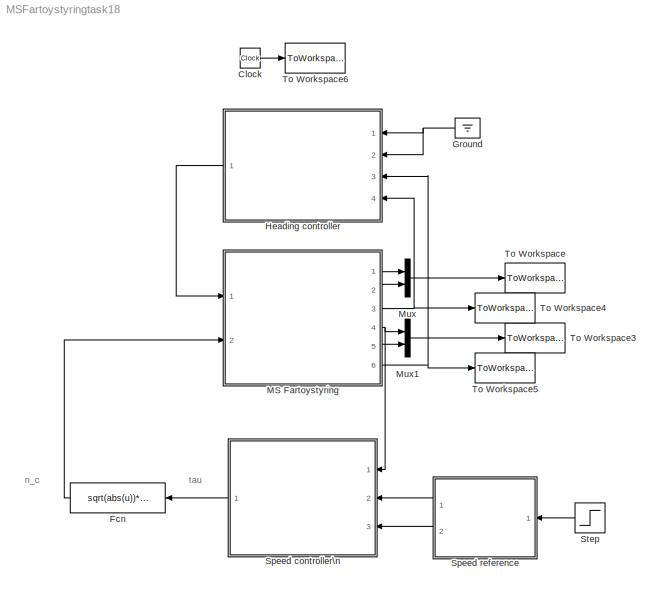
MODEL MSFartoystyringtask18
KIND model
BLOCK [Clock] Clock
  SID = 30
BLOCK [Fcn] Fcn
  Expr = sqrt(abs(u))*sgn(u)
  SID = 95
BLOCK [Ground] Ground
  SID = 98
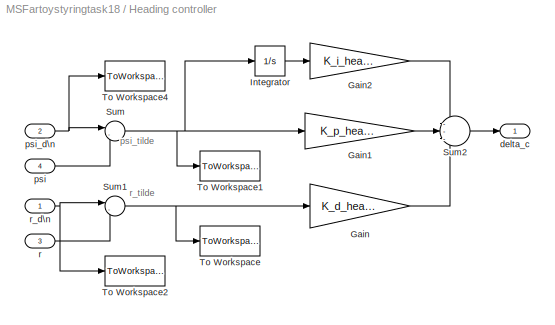
BLOCK [SubSystem] Heading controller
  Ports = [4, 1]
  RequestExecContextInheritance = off
  SID = 145
BLOCK [Gain] Heading controller/Gain
  Gain = K_d_heading
  OutDataTypeStr = Inherit: Inherit via internal rule
  ParamDataTypeStr = Inherit: Inherit via internal rule
  SID = 150
  SaturateOnIntegerOverflow = off
BLOCK [Gain] Heading controller/Gain1
  Gain = K_p_heading
  OutDataTypeStr = Inherit: Inherit via internal rule
  ParamDataTypeStr = Inherit: Inherit via internal rule
  SID = 151
  SaturateOnIntegerOverflow = off
BLOCK [Gain] Heading controller/Gain2
  Gain = K_i_heading
  OutDataTypeStr = Inherit: Inherit via internal rule
  ParamDataTypeStr = Inherit: Inherit via internal rule
  SID = 152
  SaturateOnIntegerOverflow = off
BLOCK [Integrator] Heading controller/Integrator
  Ports = [1, 1]
  SID = 153
BLOCK [Sum] Heading controller/Sum
  IconShape = round
  InputSameDT = off
  Inputs = |-+
  OutDataTypeStr = Inherit: Inherit via internal rule
  Ports = [2, 1]
  SID = 154
  SaturateOnIntegerOverflow = off
BLOCK [Sum] Heading controller/Sum1
  IconShape = round
  InputSameDT = off
  Inputs = |-+
  OutDataTypeStr = Inherit: Inherit via internal rule
  Ports = [2, 1]
  SID = 155
  SaturateOnIntegerOverflow = off
BLOCK [Sum] Heading controller/Sum2
  IconShape = round
  InputSameDT = off
  Inputs = ---
  OutDataTypeStr = Inherit: Inherit via internal rule
  Ports = [3, 1]
  SID = 156
  SaturateOnIntegerOverflow = off
BLOCK [ToWorkspace] Heading controller/To Workspace
  FixptAsFi = on
  MaxDataPoints = inf
  Ports = [1]
  SID = 157
  SampleTime = tsamp
  VariableName = r_tilde
BLOCK [ToWorkspace] Heading controller/To Workspace1
  FixptAsFi = on
  MaxDataPoints = inf
  Ports = [1]
  SID = 158
  SampleTime = tsamp
  VariableName = psi_tilde
BLOCK [ToWorkspace] Heading controller/To Workspace2
  FixptAsFi = on
  MaxDataPoints = inf
  Ports = [1]
  SID = 159
  SampleTime = tsamp
  VariableName = r_d
BLOCK [ToWorkspace] Heading controller/To Workspace4
  FixptAsFi = on
  MaxDataPoints = inf
  Ports = [1]
  SID = 160
  SampleTime = tsamp
  VariableName = psi_d
BLOCK [Outport] Heading controller/delta_c
  IconDisplay = Port number
  SID = 161
BLOCK [Inport] Heading controller/psi
  IconDisplay = Port number
  Port = 4
  SID = 149
BLOCK [Inport] Heading controller/psi_d\n
  IconDisplay = Port number
  Port = 2
  SID = 147
BLOCK [Inport] Heading controller/r
  IconDisplay = Port number
  Port = 3
  SID = 148
BLOCK [Inport] Heading controller/r_d\n
  IconDisplay = Port number
  SID = 146
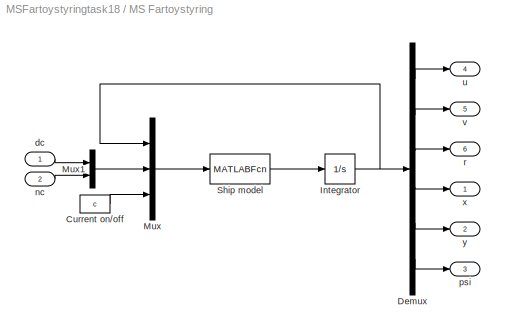
BLOCK [SubSystem] MS Fartoystyring
  Ports = [2, 6]
  RequestExecContextInheritance = off
  SID = 50
BLOCK [Constant] MS Fartoystyring/Current on//off
  SID = 53
  Value = c
BLOCK [Demux] MS Fartoystyring/Demux
  DisplayOption = bar
  Outputs = 6
  Ports = [1, 6]
  SID = 54
BLOCK [Integrator] MS Fartoystyring/Integrator
  InitialCondition = [u0 v0 r0 x0 y0 psi0]'
  Ports = [1, 1]
  SID = 55
BLOCK [Mux] MS Fartoystyring/Mux
  DisplayOption = bar
  Inputs = 3
  Ports = [3, 1]
  SID = 56
BLOCK [Mux] MS Fartoystyring/Mux1
  DisplayOption = bar
  Inputs = 2
  Ports = [2, 1]
  SID = 57
BLOCK [MATLABFcn] MS Fartoystyring/Ship model
  MATLABFcn = msfartoystyring(u(1:6), u(7:8), u(9))
  OutputDimensions = 6
  Ports = [1, 1]
  SID = 58
BLOCK [Inport] MS Fartoystyring/dc
  IconDisplay = Port number
  SID = 51
BLOCK [Inport] MS Fartoystyring/nc
  IconDisplay = Port number
  Port = 2
  SID = 52
BLOCK [Outport] MS Fartoystyring/psi
  IconDisplay = Port number
  Port = 3
  SID = 61
BLOCK [Outport] MS Fartoystyring/r
  IconDisplay = Port number
  Port = 6
  SID = 64
BLOCK [Outport] MS Fartoystyring/u
  IconDisplay = Port number
  Port = 4
  SID = 62
BLOCK [Outport] MS Fartoystyring/v
  IconDisplay = Port number
  Port = 5
  SID = 63
BLOCK [Outport] MS Fartoystyring/x
  IconDisplay = Port number
  SID = 59
BLOCK [Outport] MS Fartoystyring/y
  IconDisplay = Port number
  Port = 2
  SID = 60
BLOCK [Mux] Mux
  DisplayOption = bar
  Inputs = 2
  Ports = [2, 1]
  SID = 65
BLOCK [Mux] Mux1
  DisplayOption = bar
  Inputs = 2
  Ports = [2, 1]
  SID = 66
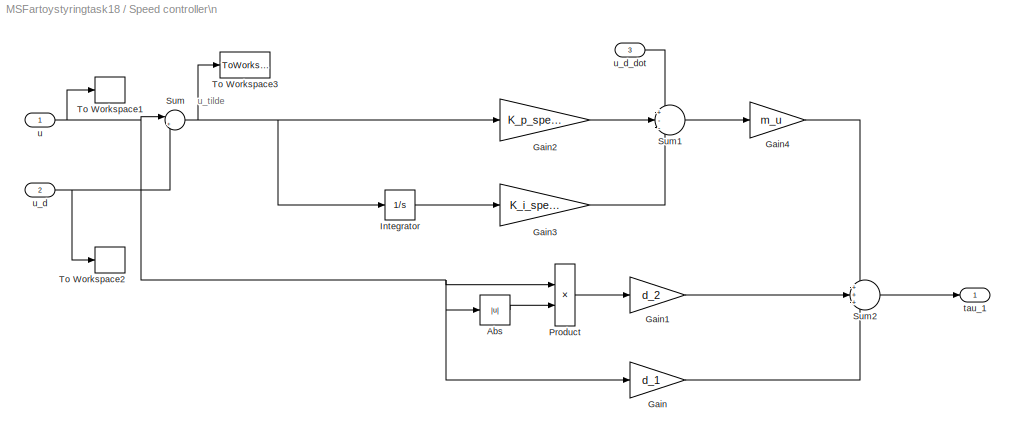
BLOCK [SubSystem] Speed controller\n
  Ports = [3, 1]
  RequestExecContextInheritance = off
  SID = 75
BLOCK [Abs] Speed controller\n/Abs
  SID = 84
  SaturateOnIntegerOverflow = off
BLOCK [Gain] Speed controller\n/Gain
  Gain = d_1
  OutDataTypeStr = Inherit: Inherit via internal rule
  ParamDataTypeStr = Inherit: Inherit via internal rule
  SID = 81
  SaturateOnIntegerOverflow = off
BLOCK [Gain] Speed controller\n/Gain1
  Gain = d_2
  OutDataTypeStr = Inherit: Inherit via internal rule
  ParamDataTypeStr = Inherit: Inherit via internal rule
  SID = 89
  SaturateOnIntegerOverflow = off
BLOCK [Gain] Speed controller\n/Gain2
  Gain = K_p_speed
  OutDataTypeStr = Inherit: Inherit via internal rule
  ParamDataTypeStr = Inherit: Inherit via internal rule
  SID = 90
  SaturateOnIntegerOverflow = off
BLOCK [Gain] Speed controller\n/Gain3
  Gain = K_i_speed
  OutDataTypeStr = Inherit: Inherit via internal rule
  ParamDataTypeStr = Inherit: Inherit via internal rule
  SID = 91
  SaturateOnIntegerOverflow = off
BLOCK [Gain] Speed controller\n/Gain4
  Gain = m_u
  OutDataTypeStr = Inherit: Inherit via internal rule
  ParamDataTypeStr = Inherit: Inherit via internal rule
  SID = 93
  SaturateOnIntegerOverflow = off
BLOCK [Integrator] Speed controller\n/Integrator
  Ports = [1, 1]
  SID = 80
BLOCK [Product] Speed controller\n/Product
  InputSameDT = off
  OutDataTypeStr = Inherit: Inherit via internal rule
  Ports = [2, 1]
  RndMeth = Floor
  SID = 83
  SaturateOnIntegerOverflow = off
BLOCK [Sum] Speed controller\n/Sum
  IconShape = round
  InputSameDT = off
  Inputs = |+-
  OutDataTypeStr = Inherit: Inherit via internal rule
  Ports = [2, 1]
  SID = 82
  SaturateOnIntegerOverflow = off
BLOCK [Sum] Speed controller\n/Sum1
  IconShape = round
  InputSameDT = off
  Inputs = +--
  OutDataTypeStr = Inherit: Inherit via internal rule
  Ports = [3, 1]
  SID = 92
  SaturateOnIntegerOverflow = off
BLOCK [Sum] Speed controller\n/Sum2
  IconShape = round
  InputSameDT = off
  Inputs = +++
  OutDataTypeStr = Inherit: Inherit via internal rule
  Ports = [3, 1]
  SID = 94
  SaturateOnIntegerOverflow = off
BLOCK [ToWorkspace] Speed controller\n/To Workspace1
  MaxDataPoints = inf
  Ports = [1]
  SID = 85
  SampleTime = tsamp
  VariableName = u
BLOCK [ToWorkspace] Speed controller\n/To Workspace2
  MaxDataPoints = inf
  Ports = [1]
  SID = 87
  SampleTime = tsamp
  VariableName = u_d
BLOCK [ToWorkspace] Speed controller\n/To Workspace3
  MaxDataPoints = inf
  Ports = [1]
  SID = 88
  SampleTime = tsamp
  VariableName = u_tilde
BLOCK [Outport] Speed controller\n/tau_1
  IconDisplay = Port number
  SID = 77
BLOCK [Inport] Speed controller\n/u
  IconDisplay = Port number
  SID = 76
BLOCK [Inport] Speed controller\n/u_d
  IconDisplay = Port number
  Port = 2
  SID = 78
BLOCK [Inport] Speed controller\n/u_d_dot
  IconDisplay = Port number
  Port = 3
  SID = 79
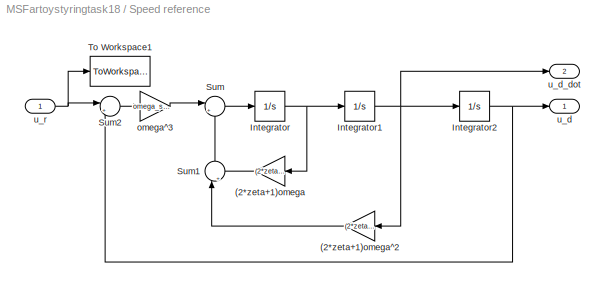
BLOCK [SubSystem] Speed reference
  Ports = [1, 2]
  RequestExecContextInheritance = off
  SID = 99
BLOCK [Gain] Speed reference/(2*zeta+1)omega
  Gain = (2*zeta_speed+1)*omega_speed
  OutDataTypeStr = Inherit: Inherit via internal rule
  ParamDataTypeStr = Inherit: Inherit via internal rule
  SID = 133
  SaturateOnIntegerOverflow = off
BLOCK [Gain] Speed reference/(2*zeta+1)omega^2
  Gain = (2*zeta_speed+1)*omega_speed^2
  OutDataTypeStr = Inherit: Inherit via internal rule
  ParamDataTypeStr = Inherit: Inherit via internal rule
  SID = 134
  SaturateOnIntegerOverflow = off
BLOCK [Integrator] Speed reference/Integrator
  Ports = [1, 1]
  SID = 135
BLOCK [Integrator] Speed reference/Integrator1
  Ports = [1, 1]
  SID = 136
BLOCK [Integrator] Speed reference/Integrator2
  InitialCondition = u_r_0
  Ports = [1, 1]
  SID = 137
BLOCK [Sum] Speed reference/Sum
  IconShape = round
  InputSameDT = off
  Inputs = |+-
  OutDataTypeStr = Inherit: Inherit via internal rule
  Ports = [2, 1]
  SID = 138
  SaturateOnIntegerOverflow = off
BLOCK [Sum] Speed reference/Sum1
  IconShape = round
  InputSameDT = off
  Inputs = |++
  OutDataTypeStr = Inherit: Inherit via internal rule
  Ports = [2, 1]
  SID = 139
  SaturateOnIntegerOverflow = off
BLOCK [Sum] Speed reference/Sum2
  IconShape = round
  InputSameDT = off
  Inputs = |+-
  OutDataTypeStr = Inherit: Inherit via internal rule
  Ports = [2, 1]
  SID = 140
  SaturateOnIntegerOverflow = off
BLOCK [ToWorkspace] Speed reference/To Workspace1
  MaxDataPoints = inf
  Ports = [1]
  SID = 141
  SampleTime = tsamp
  VariableName = u_r
BLOCK [Gain] Speed reference/omega^3
  Gain = omega_speed^3
  OutDataTypeStr = Inherit: Inherit via internal rule
  ParamDataTypeStr = Inherit: Inherit via internal rule
  SID = 142
  SaturateOnIntegerOverflow = off
BLOCK [Outport] Speed reference/u_d
  IconDisplay = Port number
  SID = 143
BLOCK [Outport] Speed reference/u_d_dot
  IconDisplay = Port number
  Port = 2
  SID = 144
BLOCK [Inport] Speed reference/u_r
  IconDisplay = Port number
  SID = 132
BLOCK [Step] Step
  After = u_r_step
  Before = u_r_0
  SID = 115
  SampleTime = 0
  Time = stepTime
BLOCK [ToWorkspace] To Workspace
  MaxDataPoints = inf
  Ports = [1]
  SID = 69
  SampleTime = tsamp
  VariableName = p
BLOCK [ToWorkspace] To Workspace3
  MaxDataPoints = inf
  Ports = [1]
  SID = 70
  SampleTime = tsamp
  VariableName = v
BLOCK [ToWorkspace] To Workspace4
  MaxDataPoints = inf
  Ports = [1]
  SID = 71
  SampleTime = tsamp
  VariableName = psi
BLOCK [ToWorkspace] To Workspace5
  MaxDataPoints = inf
  Ports = [1]
  SID = 72
  SampleTime = tsamp
  VariableName = r
BLOCK [ToWorkspace] To Workspace6
  MaxDataPoints = inf
  Ports = [1]
  SID = 73
  SampleTime = tsamp
  VariableName = t
ANNOTATION (root): n_c
ANNOTATION (root): tau
ANNOTATION Heading controller: psi_tilde\n
ANNOTATION Heading controller: r_tilde\n
ANNOTATION Speed controller\n: u_tilde
LINE Clock:1 -> To Workspace6:1
LINE Fcn:1 -> MS Fartoystyring:2
NET Ground:1 -> Heading controller:1, Heading controller:2
LINE Heading controller/Gain1:1 -> Heading controller/Sum2:2
LINE Heading controller/Gain2:1 -> Heading controller/Sum2:1
LINE Heading controller/Gain:1 -> Heading controller/Sum2:3
LINE Heading controller/Integrator:1 -> Heading controller/Gain2:1
NET Heading controller/Sum1:1 -> Heading controller/Gain:1, Heading controller/To Workspace:1
LINE Heading controller/Sum2:1 -> Heading controller/delta_c:1
NET Heading controller/Sum:1 -> Heading controller/Gain1:1, Heading controller/Integrator:1, Heading controller/To Workspace1:1
LINE Heading controller/psi:1 -> Heading controller/Sum:2
NET Heading controller/psi_d\n:1 -> Heading controller/Sum:1, Heading controller/To Workspace4:1
LINE Heading controller/r:1 -> Heading controller/Sum1:2
NET Heading controller/r_d\n:1 -> Heading controller/Sum1:1, Heading controller/To Workspace2:1
LINE Heading controller:1 -> MS Fartoystyring:1
LINE MS Fartoystyring/Current on//off:1 -> MS Fartoystyring/Mux:3
LINE MS Fartoystyring/Demux:1 -> MS Fartoystyring/u:1
LINE MS Fartoystyring/Demux:2 -> MS Fartoystyring/v:1
LINE MS Fartoystyring/Demux:3 -> MS Fartoystyring/r:1
LINE MS Fartoystyring/Demux:4 -> MS Fartoystyring/x:1
LINE MS Fartoystyring/Demux:5 -> MS Fartoystyring/y:1
LINE MS Fartoystyring/Demux:6 -> MS Fartoystyring/psi:1
NET MS Fartoystyring/Integrator:1 -> MS Fartoystyring/Demux:1, MS Fartoystyring/Mux:1
LINE MS Fartoystyring/Mux1:1 -> MS Fartoystyring/Mux:2
LINE MS Fartoystyring/Mux:1 -> MS Fartoystyring/Ship model:1
LINE MS Fartoystyring/Ship model:1 -> MS Fartoystyring/Integrator:1
LINE MS Fartoystyring/dc:1 -> MS Fartoystyring/Mux1:1
LINE MS Fartoystyring/nc:1 -> MS Fartoystyring/Mux1:2
LINE MS Fartoystyring:1 -> Mux:1
LINE MS Fartoystyring:2 -> Mux:2
NET MS Fartoystyring:3 -> Heading controller:4, To Workspace4:1
NET MS Fartoystyring:4 -> Mux1:1, Speed controller\n:1
LINE MS Fartoystyring:5 -> Mux1:2
NET MS Fartoystyring:6 -> Heading controller:3, To Workspace5:1
LINE Mux1:1 -> To Workspace3:1
LINE Mux:1 -> To Workspace:1
LINE Speed controller\n/Abs:1 -> Speed controller\n/Product:2
LINE Speed controller\n/Gain1:1 -> Speed controller\n/Sum2:2
LINE Speed controller\n/Gain2:1 -> Speed controller\n/Sum1:2
LINE Speed controller\n/Gain3:1 -> Speed controller\n/Sum1:3
LINE Speed controller\n/Gain4:1 -> Speed controller\n/Sum2:1
LINE Speed controller\n/Gain:1 -> Speed controller\n/Sum2:3
LINE Speed controller\n/Integrator:1 -> Speed controller\n/Gain3:1
LINE Speed controller\n/Product:1 -> Speed controller\n/Gain1:1
LINE Speed controller\n/Sum1:1 -> Speed controller\n/Gain4:1
LINE Speed controller\n/Sum2:1 -> Speed controller\n/tau_1:1
NET Speed controller\n/Sum:1 -> Speed controller\n/Gain2:1, Speed controller\n/Integrator:1, Speed controller\n/To Workspace3:1
NET Speed controller\n/u:1 -> Speed controller\n/Abs:1, Speed controller\n/Gain:1, Speed controller\n/Product:1, Speed controller\n/Sum:1, Speed controller\n/To Workspace1:1
NET Speed controller\n/u_d:1 -> Speed controller\n/Sum:2, Speed controller\n/To Workspace2:1
LINE Speed controller\n/u_d_dot:1 -> Speed controller\n/Sum1:1
LINE Speed controller\n:1 -> Fcn:1
LINE Speed reference/(2*zeta+1)omega:1 -> Speed reference/Sum1:2
LINE Speed reference/(2*zeta+1)omega^2:1 -> Speed reference/Sum1:1
NET Speed reference/Integrator1:1 -> Speed reference/(2*zeta+1)omega^2:1, Speed reference/Integrator2:1, Speed reference/u_d_dot:1
NET Speed reference/Integrator2:1 -> Speed reference/Sum2:2, Speed reference/u_d:1
NET Speed reference/Integrator:1 -> Speed reference/(2*zeta+1)omega:1, Speed reference/Integrator1:1
LINE Speed reference/Sum1:1 -> Speed reference/Sum:2
LINE Speed reference/Sum2:1 -> Speed reference/omega^3:1
LINE Speed reference/Sum:1 -> Speed reference/Integrator:1
LINE Speed reference/omega^3:1 -> Speed reference/Sum:1
NET Speed reference/u_r:1 -> Speed reference/Sum2:1, Speed reference/To Workspace1:1
LINE Speed reference:1 -> Speed controller\n:2
LINE Speed reference:2 -> Speed controller\n:3
LINE Step:1 -> Speed reference:1
note: NET lines group one-source signal fan-out (src -> all destinations, sorted); 1:1 wires keep LINE
